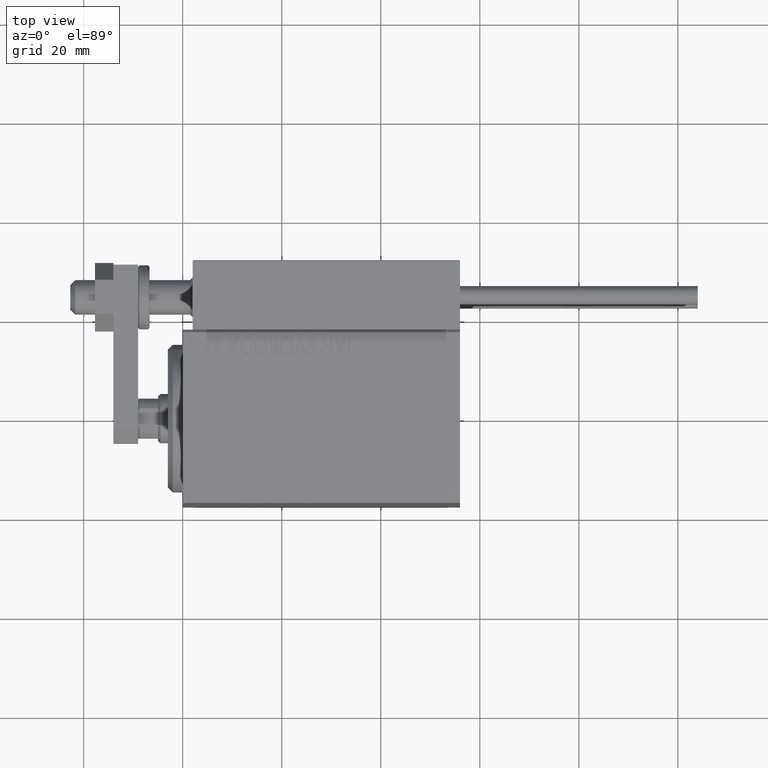
[diagram: clean part render]
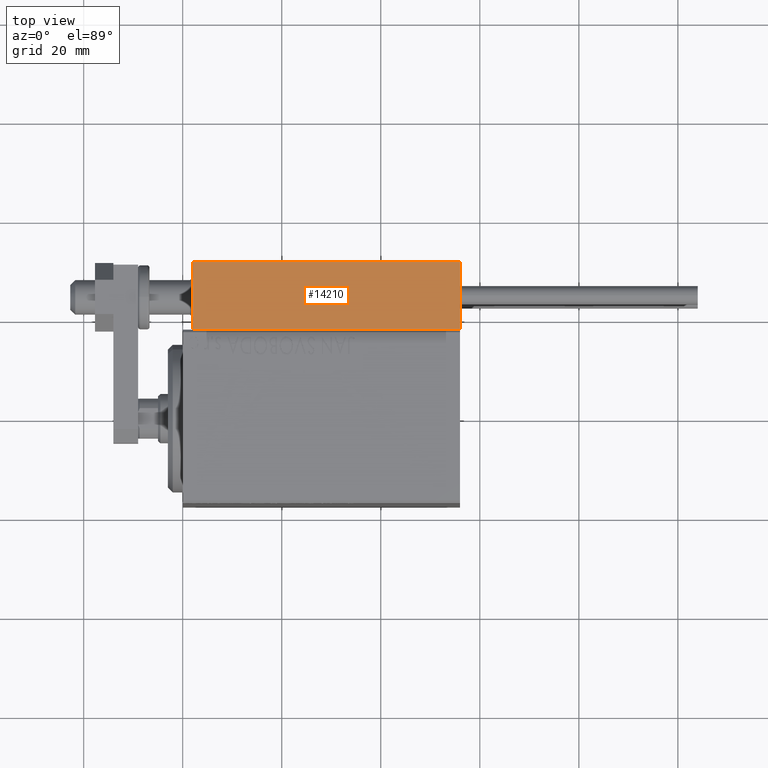
[diagram: same view with one face highlighted and labeled with its STEP entity id]
A machine part, top view. The second image highlights one B-rep face of the part: STEP entity #14210.
In plain terms, the highlighted planar face has unit normal (-0, -0, -1).
Its self-contained STEP definition (entity closure, byte-faithful):
#1463 = EDGE_CURVE ( 'NONE', #45203, #31901, #44493, .T. ) ;
#4178 = DIRECTION ( 'NONE',  ( -0.000000000000000000, -0.000000000000000000, -1.000000000000000000 ) ) ;
#6248 = CARTESIAN_POINT ( 'NONE',  ( 27.00000000000006395, 20.00000000000001776, 0.000000000000000000 ) ) ;
#7244 = VERTEX_POINT ( 'NONE', #44109 ) ;
#7374 = CARTESIAN_POINT ( 'NONE',  ( 27.00000000000006395, 20.00000000000001776, 14.00000000000000000 ) ) ;
#9682 = CARTESIAN_POINT ( 'NONE',  ( 27.00000000000006395, 20.00000000000001776, 13.70000000000000107 ) ) ;
#11454 = EDGE_LOOP ( 'NONE', ( #39696, #36888, #16440, #41596 ) ) ;
#13269 = LINE ( 'NONE', #35642, #23009 ) ;
#14210 = ADVANCED_FACE ( 'NONE', ( #43187 ), #38878, .F. ) ;
#15016 = DIRECTION ( 'NONE',  ( -6.424901762877063495E-17, -1.000000000000000000, 0.000000000000000000 ) ) ;
#15515 = DIRECTION ( 'NONE',  ( 1.000000000000000000, -6.424901762877063495E-17, 0.000000000000000000 ) ) ;
#16329 = AXIS2_PLACEMENT_3D ( 'NONE', #7374, #15016, #15515 ) ;
#16440 = ORIENTED_EDGE ( 'NONE', *, *, #23245, .T. ) ;
#17456 = CARTESIAN_POINT ( 'NONE',  ( 27.00000000000006395, 20.00000000000001776, 0.000000000000000000 ) ) ;
#22637 = VECTOR ( 'NONE', #29126, 1000.000000000000000 ) ;
#23009 = VECTOR ( 'NONE', #32557, 1000.000000000000000 ) ;
#23245 = EDGE_CURVE ( 'NONE', #31901, #43436, #13269, .T. ) ;
#23967 = CARTESIAN_POINT ( 'NONE',  ( -26.99999999999993605, 20.00000000000002132, 14.00000000000000000 ) ) ;
#24909 = DIRECTION ( 'NONE',  ( 1.000000000000000000, -6.424901762877063495E-17, -0.000000000000000000 ) ) ;
#29126 = DIRECTION ( 'NONE',  ( -1.000000000000000000, 6.424901762877062263E-17, 0.000000000000000000 ) ) ;
#30494 = CARTESIAN_POINT ( 'NONE',  ( 27.00000000000006395, 20.00000000000001776, 13.70000000000000107 ) ) ;
#31901 = VERTEX_POINT ( 'NONE', #30494 ) ;
#32557 = DIRECTION ( 'NONE',  ( -0.000000000000000000, -0.000000000000000000, -1.000000000000000000 ) ) ;
#33670 = EDGE_CURVE ( 'NONE', #45203, #7244, #38984, .T. ) ;
#35642 = CARTESIAN_POINT ( 'NONE',  ( 27.00000000000006395, 20.00000000000001776, 14.00000000000000000 ) ) ;
#36888 = ORIENTED_EDGE ( 'NONE', *, *, #1463, .T. ) ;
#38878 = PLANE ( 'NONE',  #16329 ) ;
#38984 = LINE ( 'NONE', #23967, #49826 ) ;
#39696 = ORIENTED_EDGE ( 'NONE', *, *, #33670, .F. ) ;
#41596 = ORIENTED_EDGE ( 'NONE', *, *, #47131, .T. ) ;
#43187 = FACE_OUTER_BOUND ( 'NONE', #11454, .T. ) ;
#43436 = VERTEX_POINT ( 'NONE', #6248 ) ;
#44109 = CARTESIAN_POINT ( 'NONE',  ( -26.99999999999993605, 20.00000000000002132, 0.000000000000000000 ) ) ;
#44493 = LINE ( 'NONE', #9682, #49643 ) ;
#44814 = CARTESIAN_POINT ( 'NONE',  ( -26.99999999999993605, 20.00000000000002132, 13.70000000000000107 ) ) ;
#45203 = VERTEX_POINT ( 'NONE', #44814 ) ;
#47131 = EDGE_CURVE ( 'NONE', #43436, #7244, #48472, .T. ) ;
#48472 = LINE ( 'NONE', #17456, #22637 ) ;
#49643 = VECTOR ( 'NONE', #24909, 1000.000000000000000 ) ;
#49826 = VECTOR ( 'NONE', #4178, 1000.000000000000000 ) ;